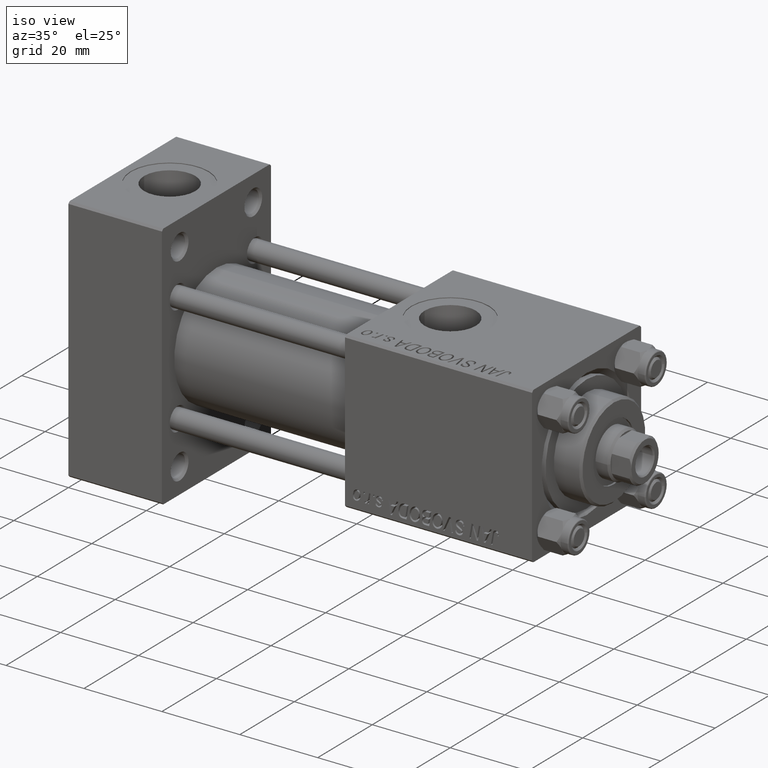
[diagram: clean part render]
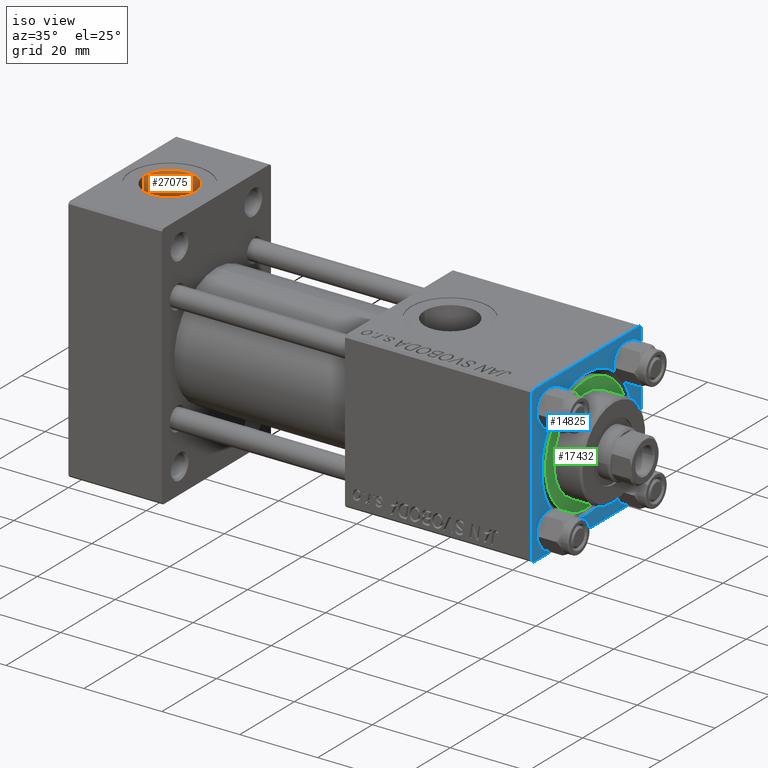
[diagram: same view with three faces highlighted in distinct colors, each labeled with its STEP entity id]
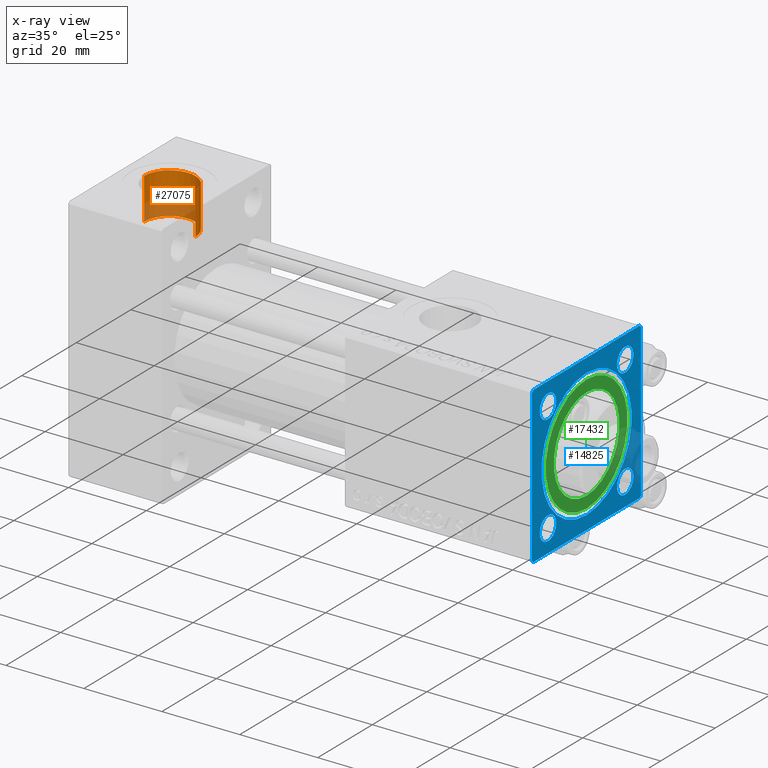
[diagram: x-ray of the same camera — body ghosted, the three highlighted faces saturated]
A machine part, iso view with three faces highlighted in distinct colors.
The next image is the same camera in x-ray (body ghosted, the three faces saturated) — at least one of them is partly hidden behind the body in this view.
Their STEP definitions:

[orange] entity #27075 — the highlighted cylindrical surface (edge-blend (fillet) strip) has radius 6.58 mm, axis along (0, 0, 1).
#267 = VECTOR ( 'NONE', #40128, 1000.000000000000000 ) ;
#3636 = EDGE_CURVE ( 'NONE', #36692, #3798, #27544, .T. ) ;
#3798 = VERTEX_POINT ( 'NONE', #25987 ) ;
#4024 = CARTESIAN_POINT ( 'NONE',  ( 18.57999999999999829, 5.204170427930421283E-15, 31.80000000000000071 ) ) ;
#6105 = ORIENTED_EDGE ( 'NONE', *, *, #3636, .F. ) ;
#6932 = CARTESIAN_POINT ( 'NONE',  ( 12.00000000000000000, 5.204170427930421283E-15, 21.16598726114649764 ) ) ;
#8668 = ORIENTED_EDGE ( 'NONE', *, *, #42958, .T. ) ;
#9190 = CARTESIAN_POINT ( 'NONE',  ( 12.00000000000000000, 5.204170427930421283E-15, 21.19999999999999929 ) ) ;
#9317 = CARTESIAN_POINT ( 'NONE',  ( 18.57999999999999829, 5.204170427930421283E-15, 21.19999999999999929 ) ) ;
#10700 = EDGE_CURVE ( 'NONE', #36692, #12764, #44445, .T. ) ;
#12764 = VERTEX_POINT ( 'NONE', #31688 ) ;
#12931 = ORIENTED_EDGE ( 'NONE', *, *, #17946, .T. ) ;
#13484 = CYLINDRICAL_SURFACE ( 'NONE', #40909, 6.579999999999999183 ) ;
#14907 = AXIS2_PLACEMENT_3D ( 'NONE', #18718, #26279, #15434 ) ;
#15434 = DIRECTION ( 'NONE',  ( 1.000000000000000000, 0.000000000000000000, 0.000000000000000000 ) ) ;
#15943 = DIRECTION ( 'NONE',  ( -0.000000000000000000, -0.000000000000000000, 1.000000000000000000 ) ) ;
#17946 = EDGE_CURVE ( 'NONE', #38455, #3798, #22175, .T. ) ;
#18298 = DIRECTION ( 'NONE',  ( -0.000000000000000000, -0.000000000000000000, -1.000000000000000000 ) ) ;
#18553 = VECTOR ( 'NONE', #15943, 1000.000000000000000 ) ;
#18718 = CARTESIAN_POINT ( 'NONE',  ( 12.00000000000000000, 5.204170427930421283E-15, 31.80000000000000071 ) ) ;
#21303 = FACE_OUTER_BOUND ( 'NONE', #22419, .T. ) ;
#22175 = CIRCLE ( 'NONE', #14907, 6.579999999999999183 ) ;
#22419 = EDGE_LOOP ( 'NONE', ( #6105, #28754, #8668, #12931 ) ) ;
#25987 = CARTESIAN_POINT ( 'NONE',  ( 5.420000000000000817, 6.009988021769379536E-15, 31.80000000000000071 ) ) ;
#26279 = DIRECTION ( 'NONE',  ( 0.000000000000000000, 0.000000000000000000, 1.000000000000000000 ) ) ;
#27075 = ADVANCED_FACE ( 'NONE', ( #21303 ), #13484, .F. ) ;
#27544 = LINE ( 'NONE', #34124, #18553 ) ;
#28754 = ORIENTED_EDGE ( 'NONE', *, *, #10700, .T. ) ;
#31688 = CARTESIAN_POINT ( 'NONE',  ( 18.57999999999999829, 5.204170427930421283E-15, 21.16598726114649764 ) ) ;
#34124 = CARTESIAN_POINT ( 'NONE',  ( 5.420000000000000817, 6.009988021769379536E-15, 21.19999999999999929 ) ) ;
#36692 = VERTEX_POINT ( 'NONE', #44660 ) ;
#36942 = DIRECTION ( 'NONE',  ( -0.000000000000000000, -0.000000000000000000, 1.000000000000000000 ) ) ;
#38455 = VERTEX_POINT ( 'NONE', #4024 ) ;
#40128 = DIRECTION ( 'NONE',  ( -0.000000000000000000, -0.000000000000000000, 1.000000000000000000 ) ) ;
#40909 = AXIS2_PLACEMENT_3D ( 'NONE', #9190, #36942, #47573 ) ;
#41251 = AXIS2_PLACEMENT_3D ( 'NONE', #6932, #18298, #48596 ) ;
#42958 = EDGE_CURVE ( 'NONE', #12764, #38455, #43906, .T. ) ;
#43906 = LINE ( 'NONE', #9317, #267 ) ;
#44445 = CIRCLE ( 'NONE', #41251, 6.579999999999999183 ) ;
#44660 = CARTESIAN_POINT ( 'NONE',  ( 5.420000000000000817, 6.009988021769379536E-15, 21.16598726114649764 ) ) ;
#47573 = DIRECTION ( 'NONE',  ( 1.000000000000000000, 0.000000000000000000, 0.000000000000000000 ) ) ;
#48596 = DIRECTION ( 'NONE',  ( 1.000000000000000000, 0.000000000000000000, 0.000000000000000000 ) ) ;

[blue] entity #14825 — the highlighted planar face has unit normal (-1, 0, 0).
#59 = DIRECTION ( 'NONE',  ( 0.000000000000000000, 0.000000000000000000, 1.000000000000000000 ) ) ;
#224 = DIRECTION ( 'NONE',  ( 0.000000000000000000, 0.000000000000000000, 1.000000000000000000 ) ) ;
#403 = DIRECTION ( 'NONE',  ( -1.000000000000000000, -0.000000000000000000, -0.000000000000000000 ) ) ;
#658 = CIRCLE ( 'NONE', #21621, 16.49999999999998579 ) ;
#691 = VECTOR ( 'NONE', #9370, 1000.000000000000000 ) ;
#896 = DIRECTION ( 'NONE',  ( 0.000000000000000000, 0.000000000000000000, 1.000000000000000000 ) ) ;
#1134 = CARTESIAN_POINT ( 'NONE',  ( 119.0000000000000142, 2.020667218593131128E-15, 16.49999999999998579 ) ) ;
#1178 = DIRECTION ( 'NONE',  ( -0.000000000000000000, 0.000000000000000000, 1.000000000000000000 ) ) ;
#2142 = CIRCLE ( 'NONE', #38328, 16.49999999999998579 ) ;
#2515 = VERTEX_POINT ( 'NONE', #32369 ) ;
#3099 = CARTESIAN_POINT ( 'NONE',  ( 119.0000000000000142, -19.50000000000000355, 19.99999999999999645 ) ) ;
#3416 = LINE ( 'NONE', #15035, #21075 ) ;
#3513 = CARTESIAN_POINT ( 'NONE',  ( 119.0000000000000142, 19.49999999999999645, 20.00000000000000000 ) ) ;
#3661 = CARTESIAN_POINT ( 'NONE',  ( 119.0000000000000142, 19.49999999999999645, 20.00000000000000000 ) ) ;
#3693 = CARTESIAN_POINT ( 'NONE',  ( 119.0000000000000142, 14.15000000000000036, 14.15000000000000036 ) ) ;
#3787 = DIRECTION ( 'NONE',  ( -1.000000000000000000, -0.000000000000000000, -0.000000000000000000 ) ) ;
#4452 = AXIS2_PLACEMENT_3D ( 'NONE', #3693, #403, #896 ) ;
#4824 = ORIENTED_EDGE ( 'NONE', *, *, #20698, .T. ) ;
#5134 = CARTESIAN_POINT ( 'NONE',  ( 119.0000000000000142, 14.15000000000000036, 11.15000000000003944 ) ) ;
#5136 = AXIS2_PLACEMENT_3D ( 'NONE', #47630, #23891, #1178 ) ;
#5217 = EDGE_CURVE ( 'NONE', #42187, #40686, #3416, .T. ) ;
#5497 = LINE ( 'NONE', #48169, #22641 ) ;
#5550 = DIRECTION ( 'NONE',  ( 0.000000000000000000, 0.000000000000000000, -1.000000000000000000 ) ) ;
#5813 = DIRECTION ( 'NONE',  ( -1.000000000000000000, -0.000000000000000000, -0.000000000000000000 ) ) ;
#6448 = ORIENTED_EDGE ( 'NONE', *, *, #29858, .T. ) ;
#7198 = DIRECTION ( 'NONE',  ( -1.000000000000000000, -0.000000000000000000, -0.000000000000000000 ) ) ;
#7440 = EDGE_LOOP ( 'NONE', ( #31611, #18859 ) ) ;
#7860 = DIRECTION ( 'NONE',  ( 0.000000000000000000, 8.673617379884036705E-17, -1.000000000000000000 ) ) ;
#7874 = ORIENTED_EDGE ( 'NONE', *, *, #19319, .T. ) ;
#8100 = CARTESIAN_POINT ( 'NONE',  ( 119.0000000000000142, -20.00000000000000355, 19.49999999999999645 ) ) ;
#8535 = CARTESIAN_POINT ( 'NONE',  ( 119.0000000000000142, 14.15000000000000036, -14.15000000000000036 ) ) ;
#8967 = LINE ( 'NONE', #40519, #17179 ) ;
#9204 = LINE ( 'NONE', #37456, #13066 ) ;
#9370 = DIRECTION ( 'NONE',  ( 0.000000000000000000, -1.000000000000000000, -8.673617379884035472E-17 ) ) ;
#9384 = ORIENTED_EDGE ( 'NONE', *, *, #10015, .T. ) ;
#9838 = EDGE_LOOP ( 'NONE', ( #9384, #29361, #38095, #31021, #40584, #7874, #6448, #25167 ) ) ;
#10015 = EDGE_CURVE ( 'NONE', #18999, #36370, #20457, .T. ) ;
#10293 = CARTESIAN_POINT ( 'NONE',  ( 119.0000000000000142, -14.15000000000000036, 11.15000000000001279 ) ) ;
#11341 = DIRECTION ( 'NONE',  ( 0.000000000000000000, -0.7071067811865474617, 0.7071067811865474617 ) ) ;
#11973 = EDGE_CURVE ( 'NONE', #42187, #30589, #9204, .T. ) ;
#12052 = CARTESIAN_POINT ( 'NONE',  ( 119.0000000000000142, 19.99999999999999645, 19.50000000000000000 ) ) ;
#12362 = ORIENTED_EDGE ( 'NONE', *, *, #24547, .T. ) ;
#12852 = EDGE_CURVE ( 'NONE', #33696, #18999, #8967, .T. ) ;
#12898 = ORIENTED_EDGE ( 'NONE', *, *, #47042, .T. ) ;
#13066 = VECTOR ( 'NONE', #49585, 1000.000000000000000 ) ;
#13386 = CIRCLE ( 'NONE', #32722, 2.999999999999962697 ) ;
#14386 = ORIENTED_EDGE ( 'NONE', *, *, #18401, .T. ) ;
#14825 = ADVANCED_FACE ( 'NONE', ( #47130, #32215, #43341, #24382, #40063, #39809 ), #24133, .F. ) ;
#15035 = CARTESIAN_POINT ( 'NONE',  ( 119.0000000000000142, 19.99999999999999645, -19.50000000000000000 ) ) ;
#15154 = CARTESIAN_POINT ( 'NONE',  ( 119.0000000000000142, -14.15000000000000036, 14.15000000000000036 ) ) ;
#15300 = CIRCLE ( 'NONE', #33825, 2.999999999999990674 ) ;
#15741 = AXIS2_PLACEMENT_3D ( 'NONE', #22054, #18277, #22309 ) ;
#16362 = VERTEX_POINT ( 'NONE', #26845 ) ;
#16474 = CARTESIAN_POINT ( 'NONE',  ( 119.0000000000000142, -14.15000000000000036, -14.15000000000000036 ) ) ;
#16723 = DIRECTION ( 'NONE',  ( -1.000000000000000000, -0.000000000000000000, -0.000000000000000000 ) ) ;
#17179 = VECTOR ( 'NONE', #36961, 1000.000000000000114 ) ;
#17486 = VERTEX_POINT ( 'NONE', #1134 ) ;
#17549 = EDGE_CURVE ( 'NONE', #33433, #27665, #32624, .T. ) ;
#17691 = VERTEX_POINT ( 'NONE', #27096 ) ;
#18277 = DIRECTION ( 'NONE',  ( -1.000000000000000000, -0.000000000000000000, -0.000000000000000000 ) ) ;
#18401 = EDGE_CURVE ( 'NONE', #35530, #42045, #31870, .T. ) ;
#18859 = ORIENTED_EDGE ( 'NONE', *, *, #22448, .T. ) ;
#18999 = VERTEX_POINT ( 'NONE', #8100 ) ;
#19319 = EDGE_CURVE ( 'NONE', #48856, #32503, #49954, .T. ) ;
#20108 = CIRCLE ( 'NONE', #45110, 2.999999999999962697 ) ;
#20162 = EDGE_CURVE ( 'NONE', #48856, #40686, #24730, .T. ) ;
#20176 = CARTESIAN_POINT ( 'NONE',  ( 119.0000000000000142, 14.15000000000000036, 17.14999999999996305 ) ) ;
#20457 = LINE ( 'NONE', #42455, #37200 ) ;
#20698 = EDGE_CURVE ( 'NONE', #23869, #16362, #48067, .T. ) ;
#21075 = VECTOR ( 'NONE', #30422, 1000.000000000000114 ) ;
#21216 = DIRECTION ( 'NONE',  ( 0.000000000000000000, 0.000000000000000000, 1.000000000000000000 ) ) ;
#21621 = AXIS2_PLACEMENT_3D ( 'NONE', #26328, #33142, #41231 ) ;
#22052 = AXIS2_PLACEMENT_3D ( 'NONE', #8535, #31259, #224 ) ;
#22054 = CARTESIAN_POINT ( 'NONE',  ( 119.0000000000000142, -14.15000000000000036, 14.15000000000000036 ) ) ;
#22309 = DIRECTION ( 'NONE',  ( 0.000000000000000000, 0.000000000000000000, 1.000000000000000000 ) ) ;
#22448 = EDGE_CURVE ( 'NONE', #17486, #17691, #2142, .T. ) ;
#22641 = VECTOR ( 'NONE', #28965, 999.9999999999998863 ) ;
#23869 = VERTEX_POINT ( 'NONE', #48514 ) ;
#23891 = DIRECTION ( 'NONE',  ( -1.000000000000000000, 0.000000000000000000, -0.000000000000000000 ) ) ;
#24133 = PLANE ( 'NONE',  #5136 ) ;
#24280 = DIRECTION ( 'NONE',  ( 0.000000000000000000, 0.000000000000000000, 1.000000000000000000 ) ) ;
#24382 = FACE_BOUND ( 'NONE', #37411, .T. ) ;
#24547 = EDGE_CURVE ( 'NONE', #27061, #2515, #13386, .T. ) ;
#24649 = VECTOR ( 'NONE', #5550, 1000.000000000000000 ) ;
#24730 = LINE ( 'NONE', #40151, #24649 ) ;
#25167 = ORIENTED_EDGE ( 'NONE', *, *, #12852, .T. ) ;
#25446 = VECTOR ( 'NONE', #11341, 1000.000000000000114 ) ;
#26328 = CARTESIAN_POINT ( 'NONE',  ( 119.0000000000000142, 0.000000000000000000, 0.000000000000000000 ) ) ;
#26845 = CARTESIAN_POINT ( 'NONE',  ( 119.0000000000000142, 14.15000000000000036, -11.15000000000003766 ) ) ;
#27056 = DIRECTION ( 'NONE',  ( -1.000000000000000000, -0.000000000000000000, -0.000000000000000000 ) ) ;
#27061 = VERTEX_POINT ( 'NONE', #40006 ) ;
#27096 = CARTESIAN_POINT ( 'NONE',  ( 119.0000000000000142, 0.000000000000000000, -16.49999999999998579 ) ) ;
#27665 = VERTEX_POINT ( 'NONE', #36324 ) ;
#28355 = EDGE_LOOP ( 'NONE', ( #12362, #40492 ) ) ;
#28965 = DIRECTION ( 'NONE',  ( 0.000000000000000000, 0.7071067811865574537, -0.7071067811865376918 ) ) ;
#29260 = CIRCLE ( 'NONE', #35704, 2.999999999999959144 ) ;
#29361 = ORIENTED_EDGE ( 'NONE', *, *, #35306, .T. ) ;
#29641 = EDGE_CURVE ( 'NONE', #17691, #17486, #658, .T. ) ;
#29858 = EDGE_CURVE ( 'NONE', #32503, #33696, #38195, .T. ) ;
#30347 = CARTESIAN_POINT ( 'NONE',  ( 119.0000000000000142, 14.15000000000000036, -14.15000000000000036 ) ) ;
#30422 = DIRECTION ( 'NONE',  ( -0.000000000000000000, 0.7071067811865474617, 0.7071067811865474617 ) ) ;
#30589 = VERTEX_POINT ( 'NONE', #49627 ) ;
#31021 = ORIENTED_EDGE ( 'NONE', *, *, #5217, .T. ) ;
#31259 = DIRECTION ( 'NONE',  ( -1.000000000000000000, -0.000000000000000000, -0.000000000000000000 ) ) ;
#31611 = ORIENTED_EDGE ( 'NONE', *, *, #29641, .T. ) ;
#31710 = CIRCLE ( 'NONE', #22052, 2.999999999999962697 ) ;
#31870 = CIRCLE ( 'NONE', #4452, 2.999999999999959144 ) ;
#32104 = EDGE_LOOP ( 'NONE', ( #14386, #35791 ) ) ;
#32215 = FACE_BOUND ( 'NONE', #32647, .T. ) ;
#32369 = CARTESIAN_POINT ( 'NONE',  ( 119.0000000000000142, -14.15000000000000036, -11.15000000000003766 ) ) ;
#32503 = VERTEX_POINT ( 'NONE', #3661 ) ;
#32624 = CIRCLE ( 'NONE', #15741, 2.999999999999990674 ) ;
#32647 = EDGE_LOOP ( 'NONE', ( #4824, #12898 ) ) ;
#32722 = AXIS2_PLACEMENT_3D ( 'NONE', #16474, #16723, #24280 ) ;
#33142 = DIRECTION ( 'NONE',  ( -1.000000000000000000, -0.000000000000000000, -0.000000000000000000 ) ) ;
#33243 = EDGE_CURVE ( 'NONE', #27665, #33433, #15300, .T. ) ;
#33433 = VERTEX_POINT ( 'NONE', #10293 ) ;
#33696 = VERTEX_POINT ( 'NONE', #3099 ) ;
#33807 = CARTESIAN_POINT ( 'NONE',  ( 119.0000000000000142, -14.15000000000000036, -14.15000000000000036 ) ) ;
#33825 = AXIS2_PLACEMENT_3D ( 'NONE', #15154, #3787, #49737 ) ;
#35306 = EDGE_CURVE ( 'NONE', #36370, #30589, #5497, .T. ) ;
#35530 = VERTEX_POINT ( 'NONE', #5134 ) ;
#35704 = AXIS2_PLACEMENT_3D ( 'NONE', #38764, #48019, #43974 ) ;
#35791 = ORIENTED_EDGE ( 'NONE', *, *, #43462, .T. ) ;
#36002 = EDGE_CURVE ( 'NONE', #2515, #27061, #20108, .T. ) ;
#36324 = CARTESIAN_POINT ( 'NONE',  ( 119.0000000000000142, -14.15000000000000036, 17.14999999999999147 ) ) ;
#36370 = VERTEX_POINT ( 'NONE', #44475 ) ;
#36765 = AXIS2_PLACEMENT_3D ( 'NONE', #30347, #27056, #59 ) ;
#36961 = DIRECTION ( 'NONE',  ( -0.000000000000000000, -0.7071067811865474617, -0.7071067811865474617 ) ) ;
#37200 = VECTOR ( 'NONE', #7860, 1000.000000000000000 ) ;
#37411 = EDGE_LOOP ( 'NONE', ( #45368, #49736 ) ) ;
#37456 = CARTESIAN_POINT ( 'NONE',  ( 119.0000000000000142, 19.99999999999999645, -20.00000000000000000 ) ) ;
#37742 = CARTESIAN_POINT ( 'NONE',  ( 119.0000000000000142, 0.000000000000000000, 0.000000000000000000 ) ) ;
#37750 = CARTESIAN_POINT ( 'NONE',  ( 119.0000000000000142, 19.49999999999999645, -20.00000000000000000 ) ) ;
#38095 = ORIENTED_EDGE ( 'NONE', *, *, #11973, .F. ) ;
#38195 = LINE ( 'NONE', #49806, #691 ) ;
#38328 = AXIS2_PLACEMENT_3D ( 'NONE', #37742, #7198, #45573 ) ;
#38764 = CARTESIAN_POINT ( 'NONE',  ( 119.0000000000000142, 14.15000000000000036, 14.15000000000000036 ) ) ;
#39809 = FACE_OUTER_BOUND ( 'NONE', #9838, .T. ) ;
#40006 = CARTESIAN_POINT ( 'NONE',  ( 119.0000000000000142, -14.15000000000000036, -17.14999999999996305 ) ) ;
#40063 = FACE_BOUND ( 'NONE', #7440, .T. ) ;
#40151 = CARTESIAN_POINT ( 'NONE',  ( 119.0000000000000142, 19.99999999999999645, 20.00000000000000000 ) ) ;
#40492 = ORIENTED_EDGE ( 'NONE', *, *, #36002, .T. ) ;
#40519 = CARTESIAN_POINT ( 'NONE',  ( 119.0000000000000142, -20.00000000000000355, 19.49999999999999645 ) ) ;
#40584 = ORIENTED_EDGE ( 'NONE', *, *, #20162, .F. ) ;
#40686 = VERTEX_POINT ( 'NONE', #45337 ) ;
#41231 = DIRECTION ( 'NONE',  ( 0.000000000000000000, 0.000000000000000000, 1.000000000000000000 ) ) ;
#42045 = VERTEX_POINT ( 'NONE', #20176 ) ;
#42187 = VERTEX_POINT ( 'NONE', #37750 ) ;
#42455 = CARTESIAN_POINT ( 'NONE',  ( 119.0000000000000142, -20.00000000000000355, 19.99999999999999645 ) ) ;
#43341 = FACE_BOUND ( 'NONE', #32104, .T. ) ;
#43462 = EDGE_CURVE ( 'NONE', #42045, #35530, #29260, .T. ) ;
#43974 = DIRECTION ( 'NONE',  ( 0.000000000000000000, 0.000000000000000000, 1.000000000000000000 ) ) ;
#44475 = CARTESIAN_POINT ( 'NONE',  ( 119.0000000000000142, -20.00000000000000000, -19.50000000000002487 ) ) ;
#45110 = AXIS2_PLACEMENT_3D ( 'NONE', #33807, #5813, #21216 ) ;
#45337 = CARTESIAN_POINT ( 'NONE',  ( 119.0000000000000142, 19.99999999999999645, -19.50000000000000000 ) ) ;
#45368 = ORIENTED_EDGE ( 'NONE', *, *, #17549, .T. ) ;
#45573 = DIRECTION ( 'NONE',  ( 0.000000000000000000, 0.000000000000000000, 1.000000000000000000 ) ) ;
#47042 = EDGE_CURVE ( 'NONE', #16362, #23869, #31710, .T. ) ;
#47130 = FACE_BOUND ( 'NONE', #28355, .T. ) ;
#47630 = CARTESIAN_POINT ( 'NONE',  ( 119.0000000000000142, 0.000000000000000000, 0.000000000000000000 ) ) ;
#48019 = DIRECTION ( 'NONE',  ( -1.000000000000000000, -0.000000000000000000, -0.000000000000000000 ) ) ;
#48067 = CIRCLE ( 'NONE', #36765, 2.999999999999962697 ) ;
#48169 = CARTESIAN_POINT ( 'NONE',  ( 119.0000000000000142, -19.50000000000001066, -20.00000000000000000 ) ) ;
#48514 = CARTESIAN_POINT ( 'NONE',  ( 119.0000000000000142, 14.15000000000000036, -17.14999999999996305 ) ) ;
#48856 = VERTEX_POINT ( 'NONE', #12052 ) ;
#49585 = DIRECTION ( 'NONE',  ( 0.000000000000000000, -1.000000000000000000, 0.000000000000000000 ) ) ;
#49627 = CARTESIAN_POINT ( 'NONE',  ( 119.0000000000000142, -19.50000000000001066, -20.00000000000000000 ) ) ;
#49736 = ORIENTED_EDGE ( 'NONE', *, *, #33243, .T. ) ;
#49737 = DIRECTION ( 'NONE',  ( 0.000000000000000000, 0.000000000000000000, 1.000000000000000000 ) ) ;
#49806 = CARTESIAN_POINT ( 'NONE',  ( 119.0000000000000142, 19.99999999999999645, 20.00000000000000000 ) ) ;
#49954 = LINE ( 'NONE', #3513, #25446 ) ;

[green] entity #17432 — the highlighted planar face has unit normal (1, 0, 0).
#18 = ORIENTED_EDGE ( 'NONE', *, *, #44336, .T. ) ;
#310 = AXIS2_PLACEMENT_3D ( 'NONE', #32089, #47252, #27557 ) ;
#721 = EDGE_LOOP ( 'NONE', ( #18, #49002 ) ) ;
#2824 = CIRCLE ( 'NONE', #37487, 15.00000000000000000 ) ;
#4271 = CIRCLE ( 'NONE', #35719, 12.00000000000000178 ) ;
#8278 = CARTESIAN_POINT ( 'NONE',  ( -12.00000000000000178, 0.000000000000000000, 28.69999999999999929 ) ) ;
#8336 = CIRCLE ( 'NONE', #36553, 12.00000000000000178 ) ;
#8562 = CARTESIAN_POINT ( 'NONE',  ( 0.000000000000000000, 0.000000000000000000, 28.69999999999999929 ) ) ;
#8953 = DIRECTION ( 'NONE',  ( 0.000000000000000000, 0.000000000000000000, 1.000000000000000000 ) ) ;
#9438 = CARTESIAN_POINT ( 'NONE',  ( -15.00000000000000000, 0.000000000000000000, 28.69999999999999929 ) ) ;
#11847 = DIRECTION ( 'NONE',  ( 1.000000000000000000, 0.000000000000000000, 0.000000000000000000 ) ) ;
#13547 = EDGE_CURVE ( 'NONE', #47111, #46912, #4271, .T. ) ;
#14578 = EDGE_CURVE ( 'NONE', #46912, #47111, #8336, .T. ) ;
#15549 = CARTESIAN_POINT ( 'NONE',  ( 0.000000000000000000, 0.000000000000000000, 28.69999999999999929 ) ) ;
#16780 = FACE_OUTER_BOUND ( 'NONE', #721, .T. ) ;
#17342 = EDGE_CURVE ( 'NONE', #27504, #25422, #2824, .T. ) ;
#17432 = ADVANCED_FACE ( 'NONE', ( #43540, #16780 ), #36205, .T. ) ;
#20954 = CARTESIAN_POINT ( 'NONE',  ( 12.00000000000000178, 1.469576158976824144E-15, 28.69999999999999929 ) ) ;
#22056 = CIRCLE ( 'NONE', #310, 15.00000000000000000 ) ;
#22551 = ORIENTED_EDGE ( 'NONE', *, *, #13547, .F. ) ;
#23947 = DIRECTION ( 'NONE',  ( 1.000000000000000000, 0.000000000000000000, 0.000000000000000000 ) ) ;
#25422 = VERTEX_POINT ( 'NONE', #9438 ) ;
#27504 = VERTEX_POINT ( 'NONE', #30314 ) ;
#27557 = DIRECTION ( 'NONE',  ( 1.000000000000000000, 0.000000000000000000, 0.000000000000000000 ) ) ;
#30011 = ORIENTED_EDGE ( 'NONE', *, *, #14578, .F. ) ;
#30314 = CARTESIAN_POINT ( 'NONE',  ( 15.00000000000000000, 1.836970198721029589E-15, 28.69999999999999929 ) ) ;
#32089 = CARTESIAN_POINT ( 'NONE',  ( 0.000000000000000000, 0.000000000000000000, 28.69999999999999929 ) ) ;
#34217 = DIRECTION ( 'NONE',  ( 1.000000000000000000, 0.000000000000000000, 0.000000000000000000 ) ) ;
#34466 = DIRECTION ( 'NONE',  ( 0.000000000000000000, 0.000000000000000000, 1.000000000000000000 ) ) ;
#35032 = AXIS2_PLACEMENT_3D ( 'NONE', #43790, #8953, #35449 ) ;
#35114 = EDGE_LOOP ( 'NONE', ( #22551, #30011 ) ) ;
#35449 = DIRECTION ( 'NONE',  ( 1.000000000000000000, 0.000000000000000000, -0.000000000000000000 ) ) ;
#35719 = AXIS2_PLACEMENT_3D ( 'NONE', #38358, #45931, #11847 ) ;
#36205 = PLANE ( 'NONE',  #35032 ) ;
#36553 = AXIS2_PLACEMENT_3D ( 'NONE', #8562, #43647, #23947 ) ;
#37487 = AXIS2_PLACEMENT_3D ( 'NONE', #15549, #34466, #34217 ) ;
#38358 = CARTESIAN_POINT ( 'NONE',  ( 0.000000000000000000, 0.000000000000000000, 28.69999999999999929 ) ) ;
#43540 = FACE_BOUND ( 'NONE', #35114, .T. ) ;
#43647 = DIRECTION ( 'NONE',  ( 0.000000000000000000, 0.000000000000000000, 1.000000000000000000 ) ) ;
#43790 = CARTESIAN_POINT ( 'NONE',  ( 0.000000000000000000, 0.000000000000000000, 28.69999999999999929 ) ) ;
#44336 = EDGE_CURVE ( 'NONE', #25422, #27504, #22056, .T. ) ;
#45931 = DIRECTION ( 'NONE',  ( 0.000000000000000000, 0.000000000000000000, 1.000000000000000000 ) ) ;
#46912 = VERTEX_POINT ( 'NONE', #20954 ) ;
#47111 = VERTEX_POINT ( 'NONE', #8278 ) ;
#47252 = DIRECTION ( 'NONE',  ( 0.000000000000000000, 0.000000000000000000, 1.000000000000000000 ) ) ;
#49002 = ORIENTED_EDGE ( 'NONE', *, *, #17342, .T. ) ;